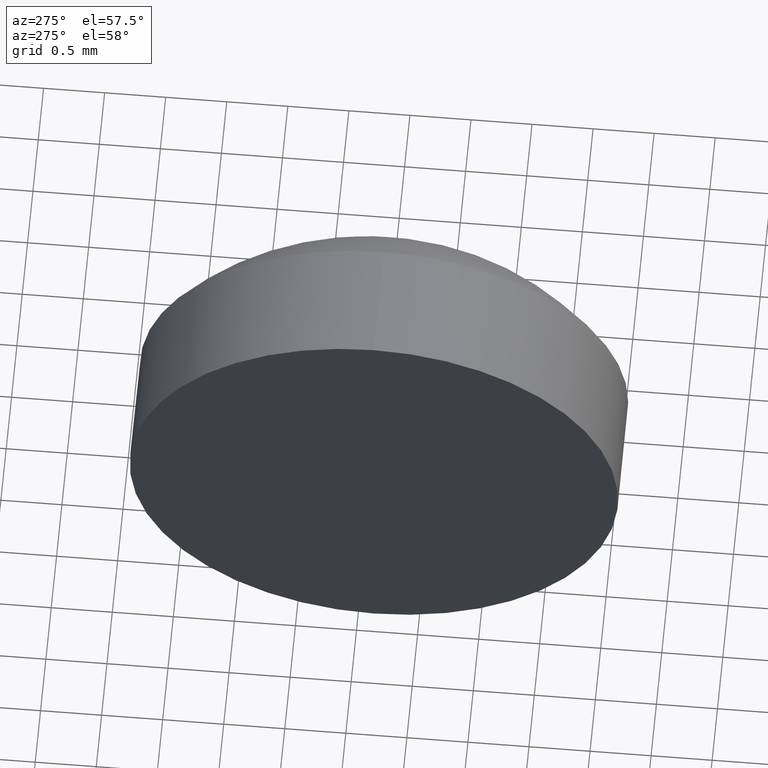
[diagram: clean part render]
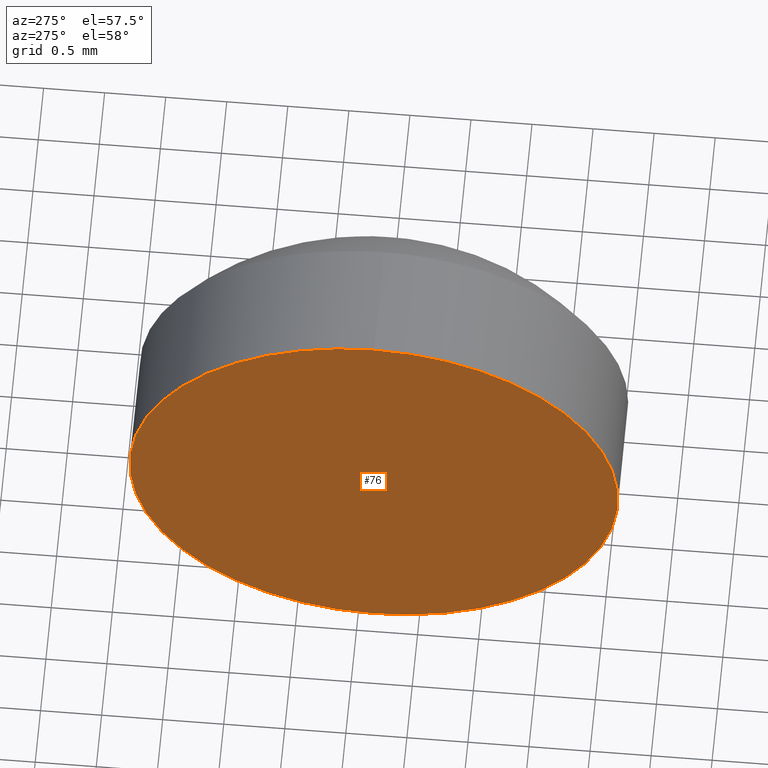
[diagram: same view with one face highlighted and labeled with its STEP entity id]
A machine part, auxiliary view. The second image highlights one B-rep face of the part: STEP entity #76.
In plain terms, the highlighted planar face has unit normal (1, 0, 0).
Its self-contained STEP definition (entity closure, byte-faithful):
#2 = EDGE_CURVE ( 'NONE', #59, #139, #153, .T. ) ;
#17 = DIRECTION ( 'NONE',  ( 0.0000000000000000000, 0.0000000000000000000, 1.000000000000000000 ) ) ;
#23 = PLANE ( 'NONE',  #169 ) ;
#27 = ORIENTED_EDGE ( 'NONE', *, *, #36, .T. ) ;
#34 = ORIENTED_EDGE ( 'NONE', *, *, #2, .T. ) ;
#36 = EDGE_CURVE ( 'NONE', #139, #59, #149, .T. ) ;
#59 = VERTEX_POINT ( 'NONE', #63 ) ;
#63 = CARTESIAN_POINT ( 'NONE',  ( 387.1159552680862800, 29.36813379656234700, -2.000000000000001800 ) ) ;
#76 = ADVANCED_FACE ( 'NONE', ( #147 ), #23, .F. ) ;
#88 = DIRECTION ( 'NONE',  ( 0.0000000000000000000, 0.0000000000000000000, 1.000000000000000000 ) ) ;
#91 = DIRECTION ( 'NONE',  ( 1.000000000000000000, 0.0000000000000000000, 0.0000000000000000000 ) ) ;
#103 = DIRECTION ( 'NONE',  ( -1.000000000000000000, -0.0000000000000000000, -0.0000000000000000000 ) ) ;
#113 = DIRECTION ( 'NONE',  ( -1.000000000000000000, -0.0000000000000000000, -0.0000000000000000000 ) ) ;
#116 = CARTESIAN_POINT ( 'NONE',  ( 387.1159552680862800, 29.36813379656234700, 0.0000000000000000000 ) ) ;
#117 = CARTESIAN_POINT ( 'NONE',  ( 387.1159552680862800, 29.36813379656234700, 0.0000000000000000000 ) ) ;
#133 = DIRECTION ( 'NONE',  ( 0.0000000000000000000, 0.0000000000000000000, -1.000000000000000000 ) ) ;
#137 = AXIS2_PLACEMENT_3D ( 'NONE', #116, #103, #88 ) ;
#138 = AXIS2_PLACEMENT_3D ( 'NONE', #117, #113, #17 ) ;
#139 = VERTEX_POINT ( 'NONE', #160 ) ;
#145 = CARTESIAN_POINT ( 'NONE',  ( 387.1159552680862800, 29.36813379656234700, 0.0000000000000000000 ) ) ;
#147 = FACE_OUTER_BOUND ( 'NONE', #150, .T. ) ;
#149 = CIRCLE ( 'NONE', #137, 2.000000000000001800 ) ;
#150 = EDGE_LOOP ( 'NONE', ( #27, #34 ) ) ;
#153 = CIRCLE ( 'NONE', #138, 2.000000000000001800 ) ;
#160 = CARTESIAN_POINT ( 'NONE',  ( 387.1159552680862800, 29.36813379656234700, 2.000000000000001800 ) ) ;
#169 = AXIS2_PLACEMENT_3D ( 'NONE', #145, #91, #133 ) ;